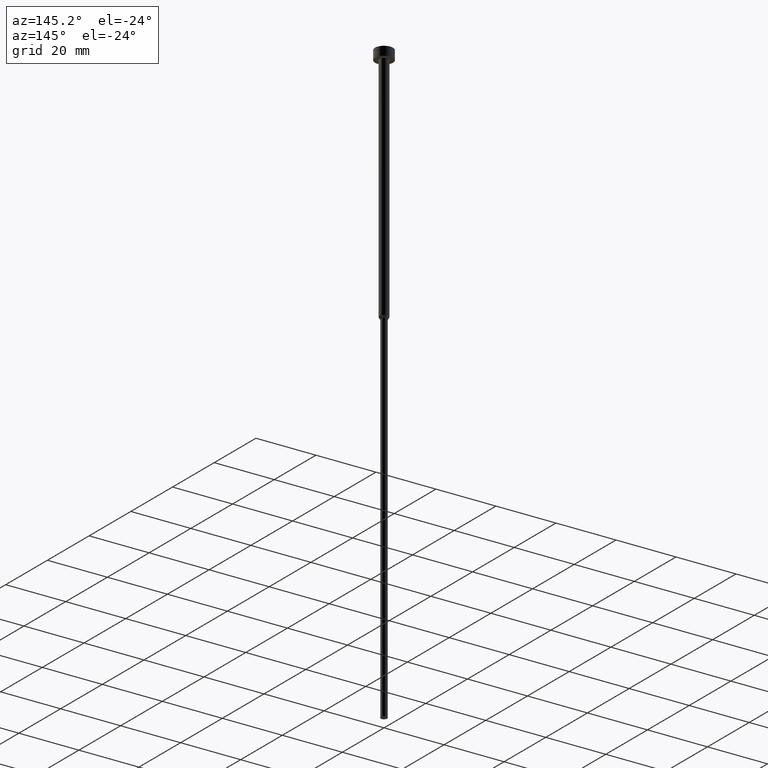
[diagram: clean part render]
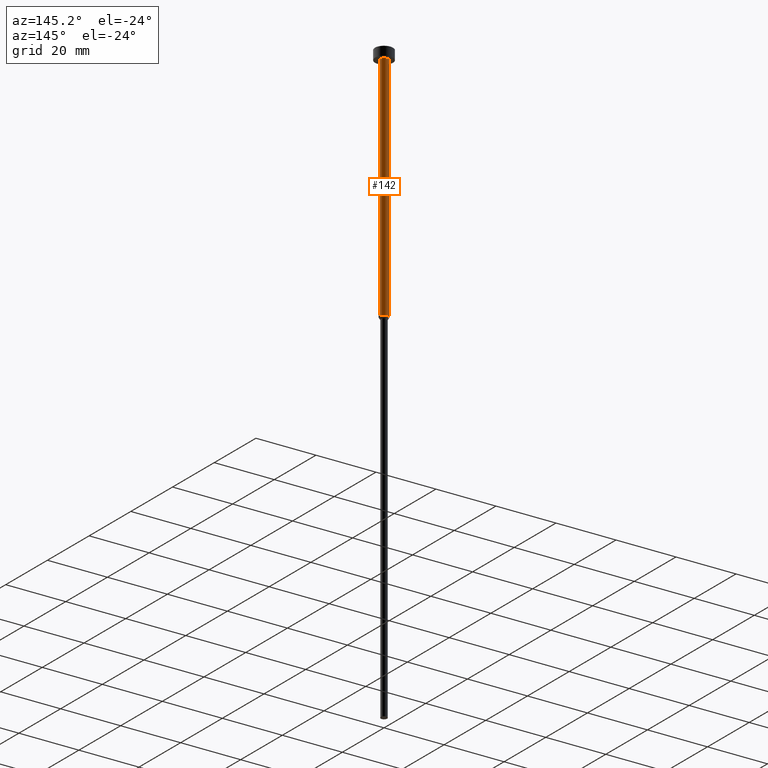
[diagram: same view with one face highlighted and labeled with its STEP entity id]
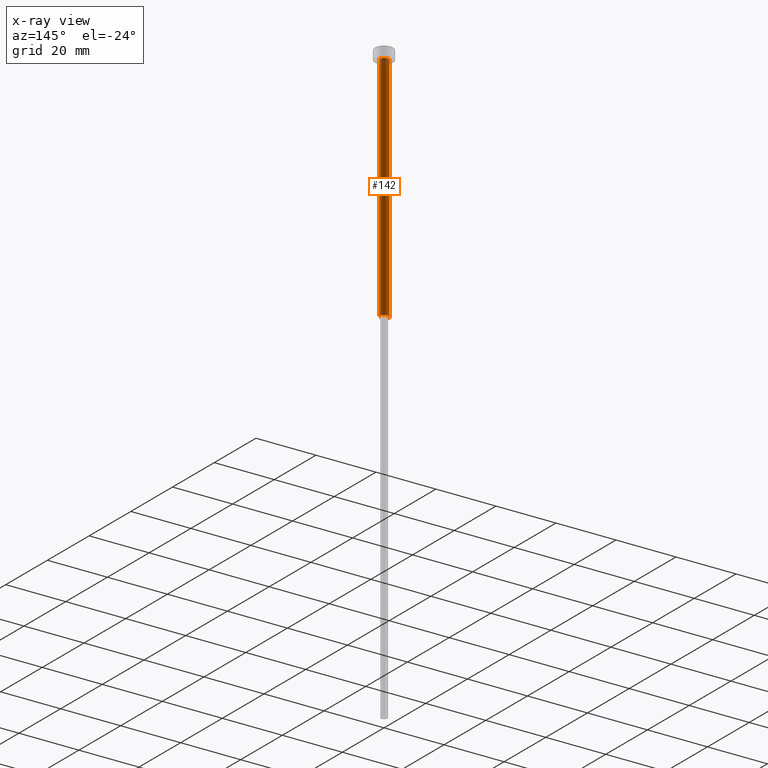
[diagram: x-ray of the same camera — body ghosted, the highlighted face saturated]
A machine part, auxiliary view. The second image highlights one B-rep face of the part: STEP entity #142.
The next image is the same camera in x-ray: the body ghosted, the highlighted face saturated — about 0% of this face is hidden behind the body in this view.
In plain terms, the highlighted cylindrical surface (edge-blend (fillet) strip) has radius 1.5 mm, axis along (-0, -0, 1).
Its self-contained STEP definition (entity closure, byte-faithful):
#4 = CIRCLE ( 'NONE', #215, 1.500000000000000000 ) ;
#5 = CARTESIAN_POINT ( 'NONE',  ( 0.000000000000000000, 0.000000000000000000, -3.000000000000000888 ) ) ;
#9 = VERTEX_POINT ( 'NONE', #264 ) ;
#20 = VERTEX_POINT ( 'NONE', #148 ) ;
#37 = DIRECTION ( 'NONE',  ( -0.000000000000000000, -0.000000000000000000, 1.000000000000000000 ) ) ;
#53 = CYLINDRICAL_SURFACE ( 'NONE', #81, 1.500000000000000000 ) ;
#54 = EDGE_CURVE ( 'NONE', #315, #292, #302, .T. ) ;
#59 = CARTESIAN_POINT ( 'NONE',  ( -1.500000000000000000, 1.836970198721029934E-16, -80.00000000000000000 ) ) ;
#78 = DIRECTION ( 'NONE',  ( -0.000000000000000000, -0.000000000000000000, 1.000000000000000000 ) ) ;
#81 = AXIS2_PLACEMENT_3D ( 'NONE', #194, #82, #165 ) ;
#82 = DIRECTION ( 'NONE',  ( -0.000000000000000000, -0.000000000000000000, 1.000000000000000000 ) ) ;
#95 = CARTESIAN_POINT ( 'NONE',  ( 1.500000000000000000, 0.000000000000000000, 0.000000000000000000 ) ) ;
#96 = ORIENTED_EDGE ( 'NONE', *, *, #223, .F. ) ;
#102 = EDGE_CURVE ( 'NONE', #9, #20, #339, .T. ) ;
#129 = ORIENTED_EDGE ( 'NONE', *, *, #173, .T. ) ;
#140 = DIRECTION ( 'NONE',  ( 1.000000000000000000, 0.000000000000000000, 0.000000000000000000 ) ) ;
#142 = ADVANCED_FACE ( 'NONE', ( #199 ), #53, .T. ) ;
#146 = ORIENTED_EDGE ( 'NONE', *, *, #54, .T. ) ;
#148 = CARTESIAN_POINT ( 'NONE',  ( 1.500000000000000000, 0.000000000000000000, -3.000000000000000888 ) ) ;
#165 = DIRECTION ( 'NONE',  ( 1.000000000000000000, 0.000000000000000000, 0.000000000000000000 ) ) ;
#166 = CARTESIAN_POINT ( 'NONE',  ( -1.500000000000000000, 1.836970198721029934E-16, 0.000000000000000000 ) ) ;
#171 = CARTESIAN_POINT ( 'NONE',  ( -1.500000000000000000, 1.836970198721029934E-16, -3.000000000000000888 ) ) ;
#173 = EDGE_CURVE ( 'NONE', #9, #315, #4, .T. ) ;
#189 = DIRECTION ( 'NONE',  ( -0.000000000000000000, -0.000000000000000000, 1.000000000000000000 ) ) ;
#194 = CARTESIAN_POINT ( 'NONE',  ( 0.000000000000000000, 0.000000000000000000, 0.000000000000000000 ) ) ;
#196 = DIRECTION ( 'NONE',  ( 1.000000000000000000, 0.000000000000000000, 0.000000000000000000 ) ) ;
#199 = FACE_OUTER_BOUND ( 'NONE', #312, .T. ) ;
#208 = AXIS2_PLACEMENT_3D ( 'NONE', #5, #276, #140 ) ;
#215 = AXIS2_PLACEMENT_3D ( 'NONE', #324, #78, #196 ) ;
#223 = EDGE_CURVE ( 'NONE', #20, #292, #269, .T. ) ;
#246 = VECTOR ( 'NONE', #37, 1000.000000000000000 ) ;
#264 = CARTESIAN_POINT ( 'NONE',  ( 1.500000000000000000, 0.000000000000000000, -80.00000000000000000 ) ) ;
#269 = CIRCLE ( 'NONE', #208, 1.500000000000000000 ) ;
#276 = DIRECTION ( 'NONE',  ( -0.000000000000000000, -0.000000000000000000, 1.000000000000000000 ) ) ;
#285 = ORIENTED_EDGE ( 'NONE', *, *, #102, .F. ) ;
#292 = VERTEX_POINT ( 'NONE', #171 ) ;
#295 = VECTOR ( 'NONE', #189, 1000.000000000000000 ) ;
#302 = LINE ( 'NONE', #166, #295 ) ;
#312 = EDGE_LOOP ( 'NONE', ( #129, #146, #96, #285 ) ) ;
#315 = VERTEX_POINT ( 'NONE', #59 ) ;
#324 = CARTESIAN_POINT ( 'NONE',  ( 0.000000000000000000, 0.000000000000000000, -80.00000000000000000 ) ) ;
#339 = LINE ( 'NONE', #95, #246 ) ;